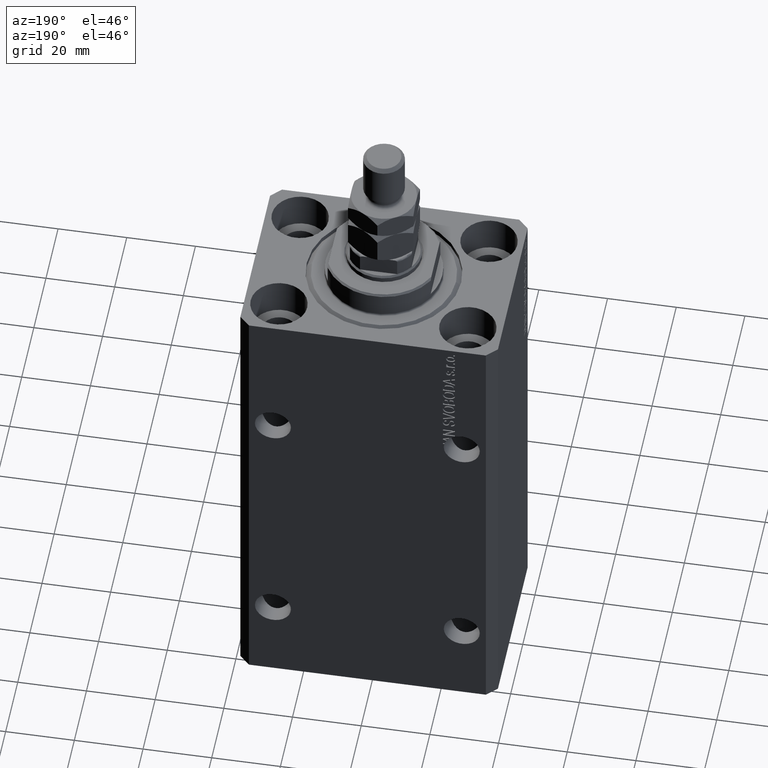
[diagram: clean part render]
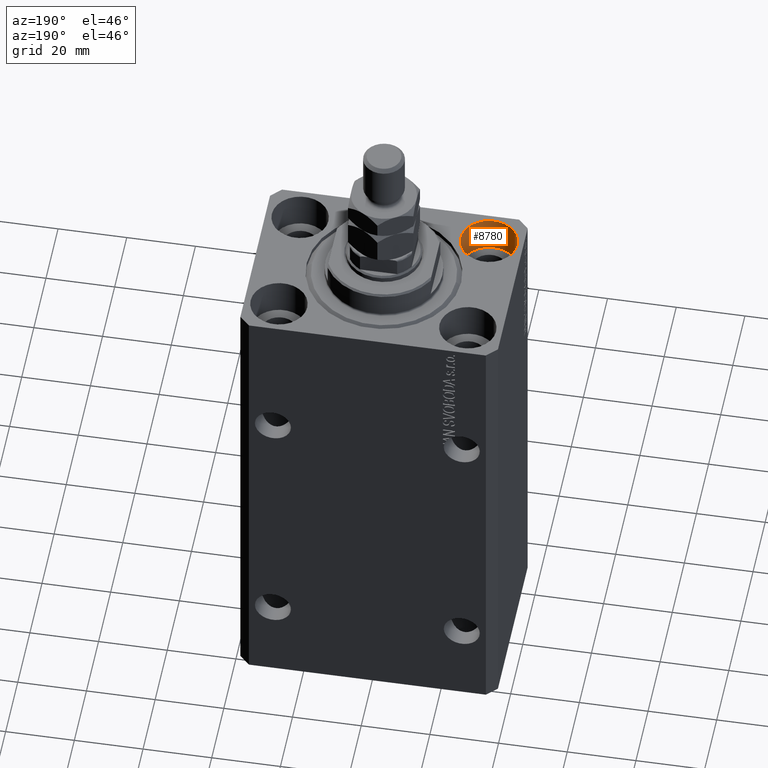
[diagram: same view with one face highlighted and labeled with its STEP entity id]
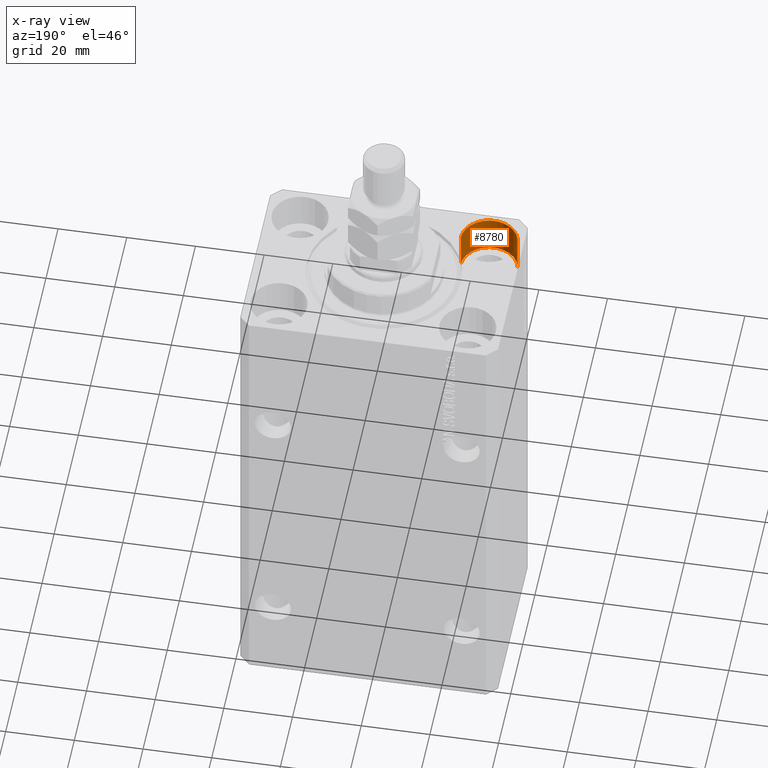
[diagram: x-ray of the same camera — body ghosted, the highlighted face saturated]
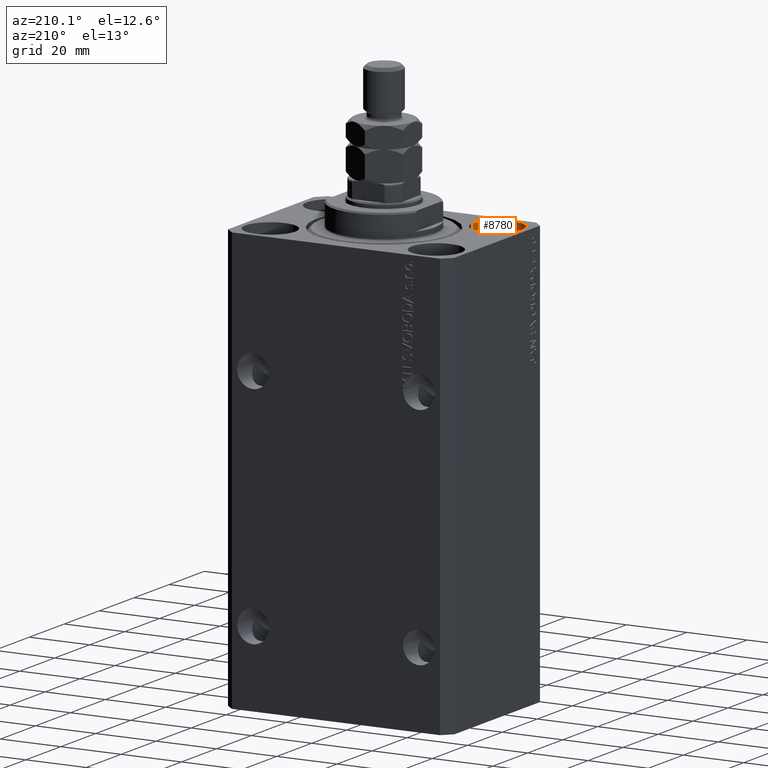
[diagram: same view with one face highlighted and labeled with its STEP entity id]
A machine part, auxiliary view. The second image highlights one B-rep face of the part: STEP entity #8780.
The next image is the same camera in x-ray: the body ghosted, the highlighted face saturated — about 0% of this face is hidden behind the body in this view.
A second angle (auxiliary view) of the same face is appended — the face is thin or edge-on in the first view.
In plain terms, the highlighted cylindrical surface (edge-blend (fillet) strip) has radius 8.25 mm, axis along (0, 0, 1).
Its self-contained STEP definition (entity closure, byte-faithful):
#1005 = LINE ( 'NONE', #43762, #12001 ) ;
#1966 = EDGE_CURVE ( 'NONE', #26473, #3265, #15052, .T. ) ;
#2259 = DIRECTION ( 'NONE',  ( 0.000000000000000000, 0.000000000000000000, 1.000000000000000000 ) ) ;
#2447 = CARTESIAN_POINT ( 'NONE',  ( -27.50000000000000355, -17.50000000000000000, -11.00000000000000000 ) ) ;
#3265 = VERTEX_POINT ( 'NONE', #33878 ) ;
#4462 = ORIENTED_EDGE ( 'NONE', *, *, #1966, .F. ) ;
#4858 = DIRECTION ( 'NONE',  ( 1.000000000000000000, 0.000000000000000000, 0.000000000000000000 ) ) ;
#8780 = ADVANCED_FACE ( 'NONE', ( #20221 ), #34461, .F. ) ;
#10625 = CARTESIAN_POINT ( 'NONE',  ( -35.75000000000000711, -17.50000000000000000, 0.000000000000000000 ) ) ;
#11030 = ORIENTED_EDGE ( 'NONE', *, *, #17718, .F. ) ;
#11313 = CIRCLE ( 'NONE', #44891, 8.250000000000000000 ) ;
#12001 = VECTOR ( 'NONE', #25781, 1000.000000000000000 ) ;
#15052 = CIRCLE ( 'NONE', #34442, 8.250000000000000000 ) ;
#15192 = CARTESIAN_POINT ( 'NONE',  ( -35.75000000000000711, -17.50000000000000000, -11.00000000000000000 ) ) ;
#16248 = CARTESIAN_POINT ( 'NONE',  ( -35.75000000000000711, -17.50000000000000000, -11.00000000000000000 ) ) ;
#17576 = ORIENTED_EDGE ( 'NONE', *, *, #38576, .T. ) ;
#17718 = EDGE_CURVE ( 'NONE', #3265, #35765, #1005, .T. ) ;
#19733 = EDGE_CURVE ( 'NONE', #38763, #35765, #11313, .T. ) ;
#20221 = FACE_OUTER_BOUND ( 'NONE', #42158, .T. ) ;
#21116 = AXIS2_PLACEMENT_3D ( 'NONE', #2447, #39353, #42403 ) ;
#25781 = DIRECTION ( 'NONE',  ( -0.000000000000000000, -0.000000000000000000, 1.000000000000000000 ) ) ;
#26473 = VERTEX_POINT ( 'NONE', #15192 ) ;
#28310 = ORIENTED_EDGE ( 'NONE', *, *, #19733, .T. ) ;
#30400 = CARTESIAN_POINT ( 'NONE',  ( -27.50000000000000355, -17.50000000000000000, -11.00000000000000000 ) ) ;
#33878 = CARTESIAN_POINT ( 'NONE',  ( -19.25000000000000355, -17.50000000000000000, -11.00000000000000000 ) ) ;
#34442 = AXIS2_PLACEMENT_3D ( 'NONE', #30400, #41592, #40675 ) ;
#34461 = CYLINDRICAL_SURFACE ( 'NONE', #21116, 8.250000000000000000 ) ;
#35765 = VERTEX_POINT ( 'NONE', #40072 ) ;
#36869 = CARTESIAN_POINT ( 'NONE',  ( -27.50000000000000355, -17.50000000000000000, 0.000000000000000000 ) ) ;
#37737 = DIRECTION ( 'NONE',  ( -0.000000000000000000, -0.000000000000000000, 1.000000000000000000 ) ) ;
#38576 = EDGE_CURVE ( 'NONE', #26473, #38763, #40781, .T. ) ;
#38763 = VERTEX_POINT ( 'NONE', #10625 ) ;
#39353 = DIRECTION ( 'NONE',  ( -0.000000000000000000, -0.000000000000000000, 1.000000000000000000 ) ) ;
#40072 = CARTESIAN_POINT ( 'NONE',  ( -19.25000000000000355, -17.50000000000000000, 0.000000000000000000 ) ) ;
#40139 = VECTOR ( 'NONE', #37737, 1000.000000000000000 ) ;
#40675 = DIRECTION ( 'NONE',  ( 1.000000000000000000, 0.000000000000000000, 0.000000000000000000 ) ) ;
#40781 = LINE ( 'NONE', #16248, #40139 ) ;
#41592 = DIRECTION ( 'NONE',  ( 0.000000000000000000, 0.000000000000000000, 1.000000000000000000 ) ) ;
#42158 = EDGE_LOOP ( 'NONE', ( #4462, #17576, #28310, #11030 ) ) ;
#42403 = DIRECTION ( 'NONE',  ( 1.000000000000000000, 0.000000000000000000, 0.000000000000000000 ) ) ;
#43762 = CARTESIAN_POINT ( 'NONE',  ( -19.25000000000000355, -17.50000000000000000, -11.00000000000000000 ) ) ;
#44891 = AXIS2_PLACEMENT_3D ( 'NONE', #36869, #2259, #4858 ) ;